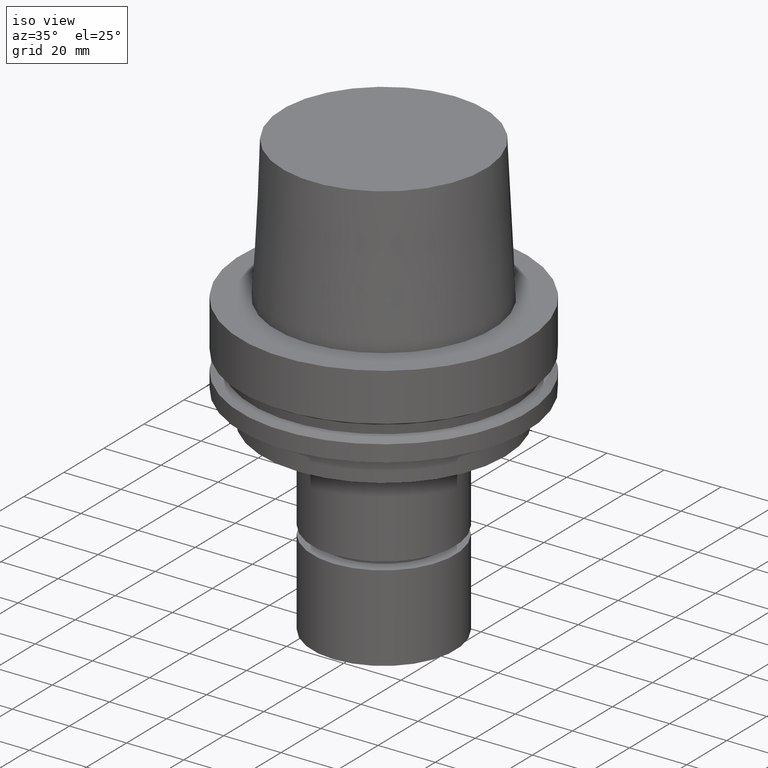
[diagram: clean part render]
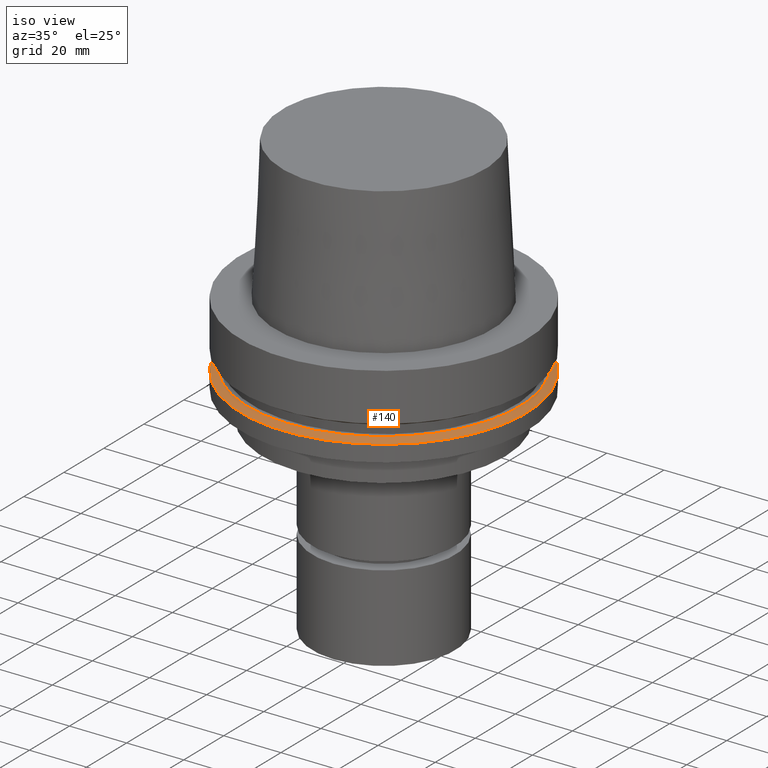
[diagram: same view with one face highlighted and labeled with its STEP entity id]
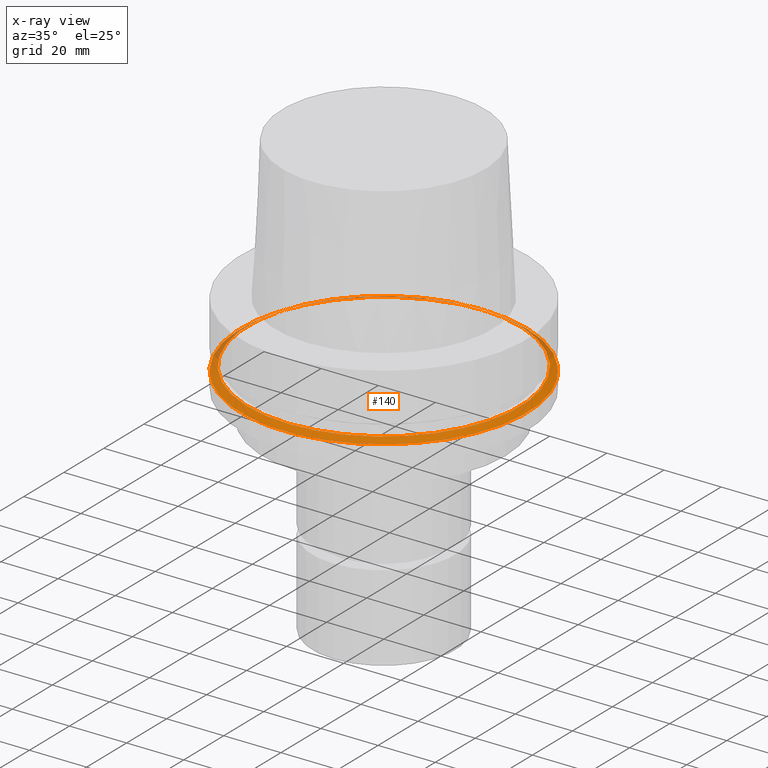
[diagram: x-ray of the same camera — body ghosted, the highlighted face saturated]
A machine part, iso view. The second image highlights one B-rep face of the part: STEP entity #140.
The next image is the same camera in x-ray: the body ghosted, the highlighted face saturated — about 12% of this face is hidden behind the body in this view.
In plain terms, the highlighted conical surface has half-angle 60 deg.
Its self-contained STEP definition (entity closure, byte-faithful):
#140=ADVANCED_FACE('Unnamed[1]',(#311,#312),#313,.T.);
#158=EDGE_CURVE('Unnamed[1]',#340,#340,#341,.T.);
#187=EDGE_CURVE('Unnamed[1]',#386,#386,#387,.T.);
#311=FACE_BOUND('',#531,.T.);
#312=FACE_BOUND('',#532,.T.);
#313=CONICAL_SURFACE('',#533,48.81129763,1.04719755328238);
#340=VERTEX_POINT('',#568);
#341=CIRCLE('',#569,50.0);
#386=VERTEX_POINT('',#626);
#387=CIRCLE('',#627,47.62259526);
#531=EDGE_LOOP('',(#752));
#532=EDGE_LOOP('',(#753));
#533=AXIS2_PLACEMENT_3D('',#754,#755,#756);
#568=CARTESIAN_POINT('',(1.42350465615161E-015,50.0,-23.24759526));
#569=AXIS2_PLACEMENT_3D('',#784,#785,#786);
#626=CARTESIAN_POINT('',(1.33945743656742E-015,47.62259526,-21.875));
#627=AXIS2_PLACEMENT_3D('',#835,#836,#837);
#752=ORIENTED_EDGE('',*,*,#158,.F.);
#753=ORIENTED_EDGE('',*,*,#187,.T.);
#754=CARTESIAN_POINT('',(1.38148104635951E-015,2.76296209271903E-015,-22.56129763));
#755=DIRECTION('',(6.12323399573677E-017,1.22464679914735E-016,-1.0));
#756=DIRECTION('',(-1.23259516440783E-032,1.0,1.22464679914735E-016));
#784=CARTESIAN_POINT('',(1.42350465615161E-015,2.84700931230322E-015,-23.24759526));
#785=DIRECTION('',(6.12323399573677E-017,1.22464679914735E-016,-1.0));
#786=DIRECTION('',(-1.23259516440783E-032,1.0,1.22464679914735E-016));
#835=CARTESIAN_POINT('',(1.33945743656742E-015,2.67891487313484E-015,-21.875));
#836=DIRECTION('',(6.12323399573676E-017,1.22464679914735E-016,-1.0));
#837=DIRECTION('',(-1.23259516440783E-032,1.0,1.22464679914735E-016));